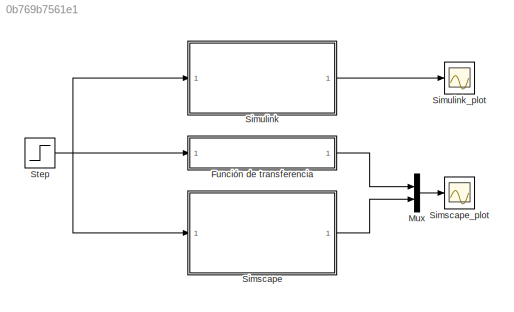
MODEL slx_0b769b7561e1
KIND model
CONFIG AbsTol = auto
CONFIG EnableMultiTasking = off
CONFIG FixedStep = auto
CONFIG MaxStep = 0.00001
CONFIG MinStep = auto
CONFIG RelTol = 1e-3
CONFIG SampleTimeConstraint = Unconstrained
CONFIG SolverName = VariableStepAuto
CONFIG StartTime = 0.0
CONFIG StopTime = 0.003
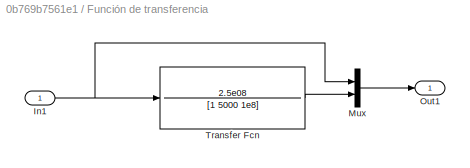
BLOCK [SubSystem] Función de transferencia
BLOCK [Inport] Función de transferencia/In1
BLOCK [Mux] Función de transferencia/Mux
  DisplayOption = bar
  Inputs = 2
BLOCK [Outport] Función de transferencia/Out1
BLOCK [TransferFcn] Función de transferencia/Transfer Fcn
  Denominator = [1 5000 1e8]
  Numerator = 2.5e08
BLOCK [Mux] Mux
  DisplayOption = bar
  Inputs = 2
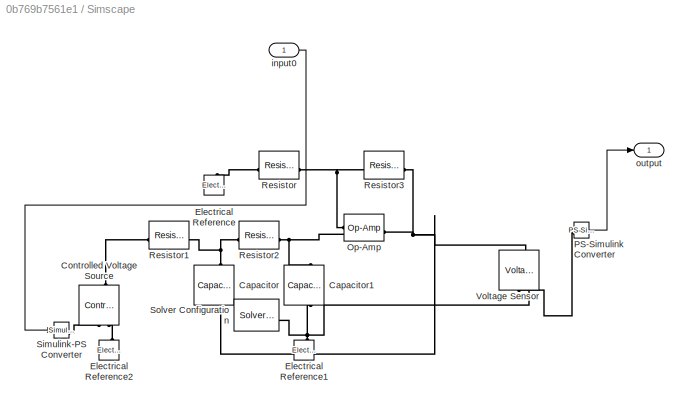
BLOCK [SubSystem] Simscape
BLOCK [Reference] Simscape/Capacitor  REF=fl_lib/Electrical/Electrical Elements/Capacitor
  NameLocation = left
  SourceBlock = fl_lib/Electrical/Electrical Elements/Capacitor
  SourceType = Capacitor
BLOCK [Reference] Simscape/Capacitor1  REF=fl_lib/Electrical/Electrical Elements/Capacitor
  NameLocation = left
  SourceBlock = fl_lib/Electrical/Electrical Elements/Capacitor
  SourceType = Capacitor
BLOCK [Reference] Simscape/Controlled Voltage Source  REF=fl_lib/Electrical/Electrical Sources/Controlled Voltage
Source
  NameLocation = right
  SourceBlock = fl_lib/Electrical/Electrical Sources/Controlled Voltage\nSource
  SourceType = Controlled Voltage\nSource
BLOCK [Reference] Simscape/Electrical Reference  REF=fl_lib/Electrical/Electrical Elements/Electrical Reference
  NameLocation = right
  SourceBlock = fl_lib/Electrical/Electrical Elements/Electrical Reference
  SourceType = Electrical Reference
BLOCK [Reference] Simscape/Electrical Reference1  REF=fl_lib/Electrical/Electrical Elements/Electrical Reference
  NameLocation = right
  SourceBlock = fl_lib/Electrical/Electrical Elements/Electrical Reference
  SourceType = Electrical Reference
BLOCK [Reference] Simscape/Electrical Reference2  REF=fl_lib/Electrical/Electrical Elements/Electrical Reference
  NameLocation = right
  SourceBlock = fl_lib/Electrical/Electrical Elements/Electrical Reference
  SourceType = Electrical Reference
BLOCK [Reference] Simscape/Op-Amp  REF=fl_lib/Electrical/Electrical Elements/Op-Amp
  SourceBlock = fl_lib/Electrical/Electrical Elements/Op-Amp
  SourceType = Op-Amp
BLOCK [Reference] Simscape/PS-Simulink Converter  REF=nesl_utility/PS-Simulink
Converter
  SourceBlock = nesl_utility/PS-Simulink\nConverter
  SourceType = PS-Simulink\nConverter
BLOCK [Reference] Simscape/Resistor  REF=fl_lib/Electrical/Electrical Elements/Resistor
  SourceBlock = fl_lib/Electrical/Electrical Elements/Resistor
  SourceType = Resistor
BLOCK [Reference] Simscape/Resistor1  REF=fl_lib/Electrical/Electrical Elements/Resistor
  SourceBlock = fl_lib/Electrical/Electrical Elements/Resistor
  SourceType = Resistor
BLOCK [Reference] Simscape/Resistor2  REF=fl_lib/Electrical/Electrical Elements/Resistor
  SourceBlock = fl_lib/Electrical/Electrical Elements/Resistor
  SourceType = Resistor
BLOCK [Reference] Simscape/Resistor3  REF=fl_lib/Electrical/Electrical Elements/Resistor
  SourceBlock = fl_lib/Electrical/Electrical Elements/Resistor
  SourceType = Resistor
BLOCK [Reference] Simscape/Simulink-PS Converter  REF=nesl_utility/Simulink-PS
Converter
  SourceBlock = nesl_utility/Simulink-PS\nConverter
  SourceType = Simulink-PS\nConverter
BLOCK [Reference] Simscape/Solver Configuration  REF=nesl_utility/Solver
Configuration
  SourceBlock = nesl_utility/Solver\nConfiguration
  SourceType = Solver\nConfiguration
BLOCK [Reference] Simscape/Voltage Sensor  REF=fl_lib/Electrical/Electrical Sensors/Voltage Sensor
  NameLocation = right
  SourceBlock = fl_lib/Electrical/Electrical Sensors/Voltage Sensor
  SourceType = Voltage Sensor
BLOCK [Inport] Simscape/input0
BLOCK [Outport] Simscape/output
BLOCK [Scope] Simscape_plot
  Floating = off
  NumInputPorts = 1
  ScopeSpecificationString = Simulink.scopes.TimeScopeBlockCfg('CurrentConfiguration', extmgr.ConfigurationSet(extmgr.Configuration('Core','General UI',true),extmgr.Configuration('Core','Source UI',true),extmgr.Configuration('Sources','WiredSimulink',true),extmgr.Configuration('Visuals','Time Domain',true,'SerializedDisplays',{struct('MinYLimReal','-0.45121','MaxYLimReal','4.06086','YLabelReal','','MinYLimMag','0.00000','MaxY...<+1470ch>
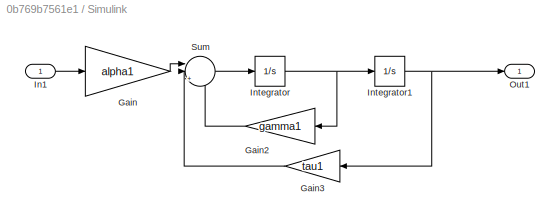
BLOCK [SubSystem] Simulink
BLOCK [Gain] Simulink/Gain
  Gain = alpha1
BLOCK [Gain] Simulink/Gain2
  Gain = gamma1
  NameLocation = top
BLOCK [Gain] Simulink/Gain3
  Gain = tau1
  NameLocation = top
BLOCK [Inport] Simulink/In1
BLOCK [Integrator] Simulink/Integrator
BLOCK [Integrator] Simulink/Integrator1
BLOCK [Outport] Simulink/Out1
BLOCK [Sum] Simulink/Sum
  Inputs = ||+--
BLOCK [Scope] Simulink_plot
  Floating = off
  NumInputPorts = 1
  ScopeSpecificationString = Simulink.scopes.TimeScopeBlockCfg('CurrentConfiguration', extmgr.ConfigurationSet(extmgr.Configuration('Core','General UI',true),extmgr.Configuration('Core','Source UI',true),extmgr.Configuration('Sources','WiredSimulink',true,'DataLoggingVariableName','ScopeData1'),extmgr.Configuration('Visuals','Time Domain',true,'SerializedDisplays',{struct('MinYLimReal','-0.45121','MaxYLimReal','4.06086','YLab...<+1429ch>
BLOCK [Step] Step
  SampleTime = 0
  Time = 0
NET Función de transferencia/In1:1 -> Función de transferencia/Mux:1, Función de transferencia/Transfer Fcn:1
LINE Función de transferencia/Mux:1 -> Función de transferencia/Out1:1
LINE Función de transferencia/Transfer Fcn:1 -> Función de transferencia/Mux:2
LINE Función de transferencia:1 -> Mux:1
LINE Mux:1 -> Simscape_plot:1
LINE Simscape/PS-Simulink Converter:1 -> Simscape/output:1
LINE Simscape/input0:1 -> Simscape/Simulink-PS Converter:1
LINE Simscape:1 -> Mux:2
LINE Simulink/Gain2:1 -> Simulink/Sum:3
LINE Simulink/Gain3:1 -> Simulink/Sum:2
LINE Simulink/Gain:1 -> Simulink/Sum:1
LINE Simulink/In1:1 -> Simulink/Gain:1
NET Simulink/Integrator1:1 -> Simulink/Gain3:1, Simulink/Out1:1
NET Simulink/Integrator:1 -> Simulink/Gain2:1, Simulink/Integrator1:1
LINE Simulink/Sum:1 -> Simulink/Integrator:1
LINE Simulink:1 -> Simulink_plot:1
NET Step:1 -> Función de transferencia:1, Simscape:1, Simulink:1
PNET net1: Simscape/Capacitor1:LConn1 -- Simscape/Op-Amp:LConn2 -- Simscape/Resistor2:RConn1
PNET net2: Simscape/Capacitor1:RConn1 -- Simscape/Electrical Reference1:LConn1 -- Simscape/Solver Configuration:RConn1 -- Simscape/Voltage Sensor:RConn2
PNET net3: Simscape/Capacitor:LConn1 -- Simscape/Resistor1:RConn1 -- Simscape/Resistor2:LConn1
PNET net4: Simscape/Capacitor:RConn1 -- Simscape/Op-Amp:RConn1 -- Simscape/Resistor3:RConn1 -- Simscape/Voltage Sensor:LConn1
PLINE Simscape/Controlled Voltage Source:LConn1 -- Simscape/Resistor1:LConn1
PLINE Simscape/Controlled Voltage Source:RConn1 -- Simscape/Simulink-PS Converter:RConn1
PLINE Simscape/Controlled Voltage Source:RConn2 -- Simscape/Electrical Reference2:LConn1
PLINE Simscape/Electrical Reference:LConn1 -- Simscape/Resistor:LConn1
PNET net5: Simscape/Op-Amp:LConn1 -- Simscape/Resistor3:LConn1 -- Simscape/Resistor:RConn1
PLINE Simscape/PS-Simulink Converter:LConn1 -- Simscape/Voltage Sensor:RConn1
note: NET lines group one-source signal fan-out (src -> all destinations, sorted); 1:1 wires keep LINE; PNET lines group multi-terminal physical nets as a canonical sorted terminal list (undirected conserving connections); 2-terminal nets keep the pairwise PLINE form
